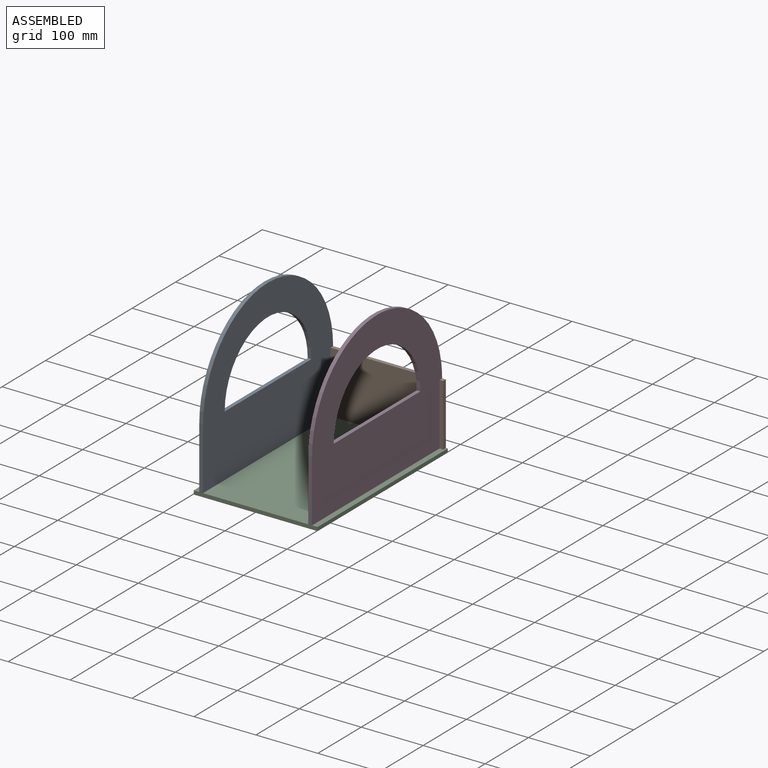
[diagram: assembled view]
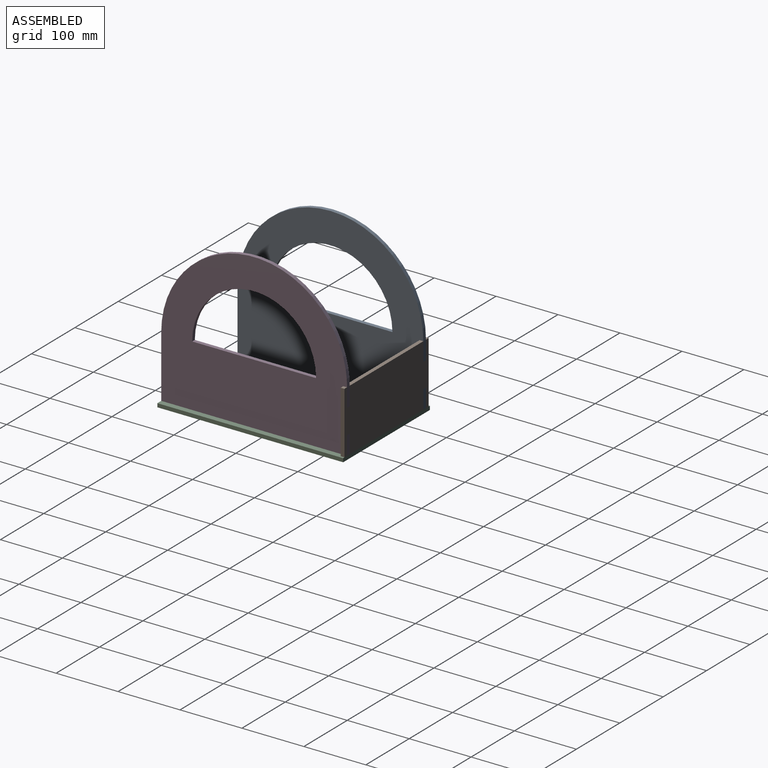
[diagram: assembled view, second angle]
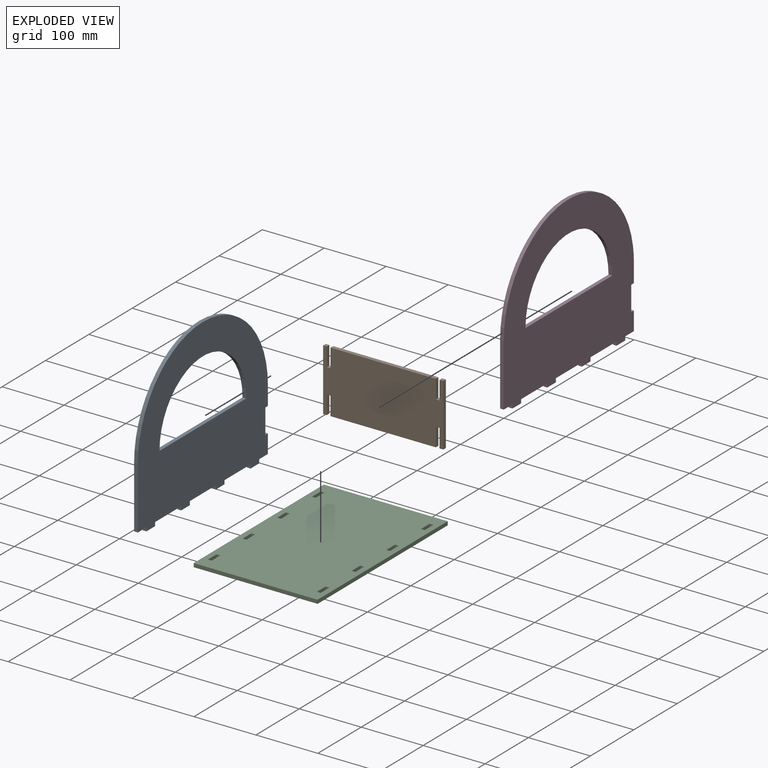
[diagram: exploded view]
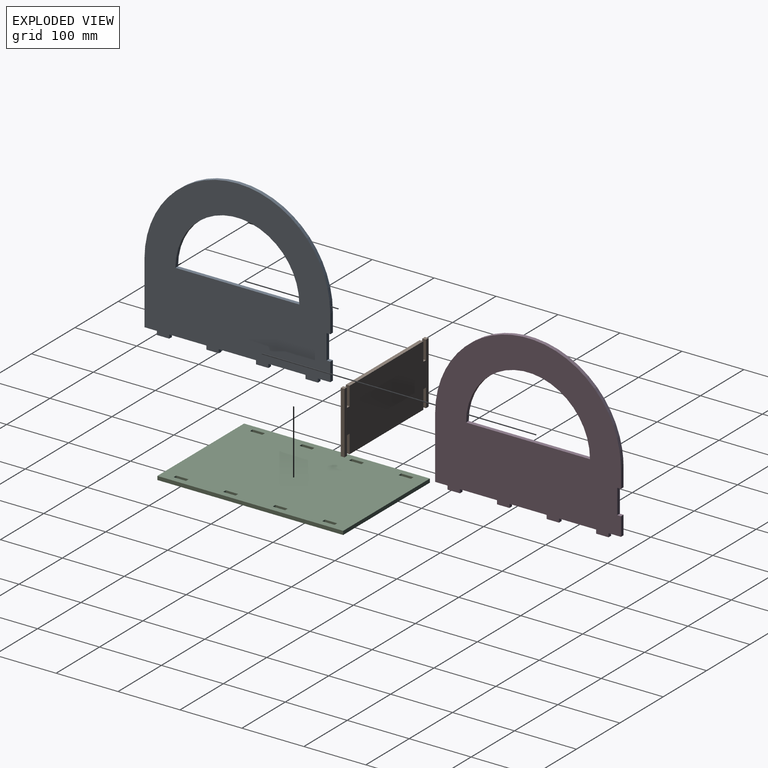
[diagram: exploded view, second angle]
ASSEMBLY  parts=4 mates=3
PART A: 28 faces, bbox 256x300x6 mm
  f0: plane 6x6mm, normal (1,0,0), area 36mm2, adj f1,f25,f26,f27
  f1: plane 30x6mm, normal (0,1,0), area 180mm2, adj f0,f2,f26,f27
  f2: cylinder r=150mm len=300mm, axis (0,0,-1), area 2827.4mm2, adj f1,f3,f26,f27
  f3: plane 100x6mm, normal (0,-1,0), area 600mm2, adj f2,f4,f26,f27
  f4: plane 20x6mm, normal (1,0,0), area 120mm2, adj f3,f5,f26,f27
  f5: plane 6x6mm, normal (0,-1,0), area 36mm2, adj f4,f6,f26,f27
  f6: plane 20x6mm, normal (1,0,0), area 120mm2, adj f5,f7,f26,f27
  f7: plane 6x6mm, normal (0,1,0), area 36mm2, adj f6,f8,f26,f27
  f8: plane 60x6mm, normal (1,0,0), area 360mm2, adj f7,f9,f26,f27
  f9: plane 6x6mm, normal (0,-1,0), area 36mm2, adj f8,f10,f26,f27
  f10: plane 20x6mm, normal (1,0,0), area 120mm2, adj f9,f11,f26,f27
  f11: plane 6x6mm, normal (0,1,0), area 36mm2, adj f10,f12,f26,f27
  f12: plane 60x6mm, normal (1,0,0), area 360mm2, adj f11,f13,f26,f27
  f13: plane 6x6mm, normal (0,-1,0), area 36mm2, adj f12,f14,f26,f27
  f14: plane 20x6mm, normal (1,0,0), area 120mm2, adj f13,f15,f26,f27
  f15: plane 6x6mm, normal (0,1,0), area 36mm2, adj f14,f16,f26,f27
  f16: plane 60x6mm, normal (1,0,0), area 360mm2, adj f15,f17,f26,f27
  f17: plane 6x6mm, normal (0,-1,0), area 36mm2, adj f16,f18,f26,f27
  f18: plane 20x6mm, normal (1,0,0), area 120mm2, adj f17,f19,f26,f27
  f19: plane 6x6mm, normal (0,1,0), area 36mm2, adj f18,f20,f26,f27
  f20: plane 20x6mm, normal (1,0,0), area 120mm2, adj f19,f21,f26,f27
  f21: plane 30x6mm, normal (0,1,0), area 180mm2, adj f20,f22,f26,f27
  f22: plane 6x6mm, normal (-1,0,0), area 36mm2, adj f21,f25,f26,f27
  f23: cylinder r=100mm len=200mm, axis (0,0,-1), area 1885mm2, adj f24,f26,f27
  f24: plane 200x6mm, normal (-1,0,0), area 1200mm2, adj f23,f26,f27
  f25: plane 40x6mm, normal (0,1,0), area 240mm2, adj f0,f22,f26,f27
  f26: plane 300x256mm, normal (0,0,1), area 49875mm2, adj f0,f1,f2,f3,f4,f5,f6,f7
  f27: plane 300x256mm, normal (0,0,-1), area 49875mm2, adj f0,f1,f2,f3,f4,f5,f6,f7
PART B: 22 faces, bbox 194x100x6 mm
  f0: plane 6x6mm, normal (0,-1,0), area 36mm2, adj f1,f19,f20,f21
  f1: plane 30x6mm, normal (-1,0,0), area 180mm2, adj f0,f2,f20,f21
  f2: plane 6x6mm, normal (0,-1,0), area 36mm2, adj f1,f3,f20,f21
  f3: plane 100x6mm, normal (1,0,0), area 600mm2, adj f2,f4,f20,f21
  f4: plane 6x6mm, normal (0,1,0), area 36mm2, adj f3,f5,f20,f21
  f5: plane 30x6mm, normal (-1,0,0), area 180mm2, adj f4,f6,f20,f21
  f6: plane 6x6mm, normal (0,1,0), area 36mm2, adj f5,f7,f20,f21
  f7: plane 30x6mm, normal (1,0,0), area 180mm2, adj f6,f8,f20,f21
  f8: plane 170x6mm, normal (0,1,0), area 1020mm2, adj f7,f9,f20,f21
  f9: plane 30x6mm, normal (-1,0,0), area 180mm2, adj f8,f10,f20,f21
  f10: plane 6x6mm, normal (0,1,0), area 36mm2, adj f9,f11,f20,f21
  f11: plane 30x6mm, normal (1,0,0), area 180mm2, adj f10,f12,f20,f21
  f12: plane 6x6mm, normal (0,1,0), area 36mm2, adj f11,f13,f20,f21
  f13: plane 100x6mm, normal (-1,0,0), area 600mm2, adj f12,f14,f20,f21
  f14: plane 6x6mm, normal (0,-1,0), area 36mm2, adj f13,f15,f20,f21
  f15: plane 30x6mm, normal (1,0,0), area 180mm2, adj f14,f16,f20,f21
  f16: plane 6x6mm, normal (0,-1,0), area 36mm2, adj f15,f17,f20,f21
  f17: plane 30x6mm, normal (-1,0,0), area 180mm2, adj f16,f18,f20,f21
  f18: plane 170x6mm, normal (0,-1,0), area 1020mm2, adj f17,f19,f20,f21
  f19: plane 30x6mm, normal (1,0,0), area 180mm2, adj f0,f18,f20,f21
  f20: plane 194x100mm, normal (0,0,1), area 18680mm2, adj f0,f1,f2,f3,f4,f5,f6,f7
  f21: plane 194x100mm, normal (0,0,-1), area 18680mm2, adj f0,f1,f2,f3,f4,f5,f6,f7
PART C: 38 faces, bbox 200x300x6 mm
  f0: plane 200x6mm, normal (0,1,0), area 1200mm2, adj f1,f35,f36,f37
  f1: plane 300x6mm, normal (-1,0,0), area 1800mm2, adj f0,f2,f36,f37
  f2: plane 200x6mm, normal (0,-1,0), area 1200mm2, adj f1,f35,f36,f37
  f3: plane 20x6mm, normal (1,0,0), area 120mm2, adj f4,f27,f36,f37
  f4: plane 6x6mm, normal (0,-1,0), area 36mm2, adj f3,f5,f36,f37
  f5: plane 20x6mm, normal (-1,0,0), area 120mm2, adj f4,f27,f36,f37
  f6: plane 20x6mm, normal (1,0,0), area 120mm2, adj f7,f28,f36,f37
  f7: plane 6x6mm, normal (0,-1,0), area 36mm2, adj f6,f8,f36,f37
  f8: plane 20x6mm, normal (-1,0,0), area 120mm2, adj f7,f28,f36,f37
  f9: plane 20x6mm, normal (1,0,0), area 120mm2, adj f10,f29,f36,f37
  f10: plane 6x6mm, normal (0,-1,0), area 36mm2, adj f9,f11,f36,f37
  f11: plane 20x6mm, normal (-1,0,0), area 120mm2, adj f10,f29,f36,f37
  f12: plane 20x6mm, normal (1,0,0), area 120mm2, adj f13,f30,f36,f37
  f13: plane 6x6mm, normal (0,-1,0), area 36mm2, adj f12,f14,f36,f37
  f14: plane 20x6mm, normal (-1,0,0), area 120mm2, adj f13,f30,f36,f37
  f15: plane 20x6mm, normal (1,0,0), area 120mm2, adj f16,f31,f36,f37
  f16: plane 6x6mm, normal (0,-1,0), area 36mm2, adj f15,f17,f36,f37
  f17: plane 20x6mm, normal (-1,0,0), area 120mm2, adj f16,f31,f36,f37
  f18: plane 20x6mm, normal (1,0,0), area 120mm2, adj f19,f32,f36,f37
  f19: plane 6x6mm, normal (0,-1,0), area 36mm2, adj f18,f20,f36,f37
  f20: plane 20x6mm, normal (-1,0,0), area 120mm2, adj f19,f32,f36,f37
  f21: plane 20x6mm, normal (1,0,0), area 120mm2, adj f22,f33,f36,f37
  f22: plane 6x6mm, normal (0,-1,0), area 36mm2, adj f21,f23,f36,f37
  f23: plane 20x6mm, normal (-1,0,0), area 120mm2, adj f22,f33,f36,f37
  f24: plane 20x6mm, normal (1,0,0), area 120mm2, adj f25,f34,f36,f37
  f25: plane 6x6mm, normal (0,-1,0), area 36mm2, adj f24,f26,f36,f37
  f26: plane 20x6mm, normal (-1,0,0), area 120mm2, adj f25,f34,f36,f37
  f27: plane 6x6mm, normal (0,1,0), area 36mm2, adj f3,f5,f36,f37
  f28: plane 6x6mm, normal (0,1,0), area 36mm2, adj f6,f8,f36,f37
  f29: plane 6x6mm, normal (0,1,0), area 36mm2, adj f9,f11,f36,f37
  f30: plane 6x6mm, normal (0,1,0), area 36mm2, adj f12,f14,f36,f37
  f31: plane 6x6mm, normal (0,1,0), area 36mm2, adj f15,f17,f36,f37
  f32: plane 6x6mm, normal (0,1,0), area 36mm2, adj f18,f20,f36,f37
  f33: plane 6x6mm, normal (0,1,0), area 36mm2, adj f21,f23,f36,f37
  f34: plane 6x6mm, normal (0,1,0), area 36mm2, adj f24,f26,f36,f37
  f35: plane 300x6mm, normal (1,0,0), area 1800mm2, adj f0,f2,f36,f37
  f36: plane 300x200mm, normal (0,0,1), area 59040mm2, adj f0,f1,f2,f3,f4,f5,f6,f7
  f37: plane 300x200mm, normal (0,0,-1), area 59040mm2, adj f0,f1,f2,f3,f4,f5,f6,f7
PART D: 28 faces, bbox 301x300x6 mm
  f0: plane 30x6mm, normal (0,1,0), area 180mm2, adj f1,f25,f26,f27
  f1: plane 6x6mm, normal (-1,0,0), area 36mm2, adj f0,f2,f26,f27
  f2: plane 40x6mm, normal (0,1,0), area 240mm2, adj f1,f3,f26,f27
  f3: plane 6x6mm, normal (1,0,0), area 36mm2, adj f2,f4,f26,f27
  f4: plane 30x6mm, normal (0,1,0), area 180mm2, adj f3,f5,f26,f27
  f5: plane 20x6mm, normal (-1,0,0), area 120mm2, adj f4,f6,f26,f27
  f6: plane 6x6mm, normal (0,1,0), area 36mm2, adj f5,f7,f26,f27
  f7: plane 20x6mm, normal (-1,0,0), area 120mm2, adj f6,f8,f26,f27
  f8: plane 6x6mm, normal (0,-1,0), area 36mm2, adj f7,f9,f26,f27
  f9: plane 60x6mm, normal (-1,0,0), area 360mm2, adj f8,f10,f26,f27
  f10: plane 6x6mm, normal (0,1,0), area 36mm2, adj f9,f11,f26,f27
  f11: plane 20x6mm, normal (-1,0,0), area 120mm2, adj f10,f12,f26,f27
  f12: plane 6x6mm, normal (0,-1,0), area 36mm2, adj f11,f13,f26,f27
  f13: plane 60x6mm, normal (-1,0,0), area 360mm2, adj f12,f14,f26,f27
  f14: plane 6x6mm, normal (0,1,0), area 36mm2, adj f13,f15,f26,f27
  f15: plane 20x6mm, normal (-1,0,0), area 120mm2, adj f14,f16,f26,f27
  f16: plane 6x6mm, normal (0,-1,0), area 36mm2, adj f15,f17,f26,f27
  f17: plane 60x6mm, normal (-1,0,0), area 360mm2, adj f16,f18,f26,f27
  f18: plane 6x6mm, normal (0,1,0), area 36mm2, adj f17,f19,f26,f27
  f19: plane 20x6mm, normal (-1,0,0), area 120mm2, adj f18,f20,f26,f27
  f20: plane 6x6mm, normal (0,-1,0), area 36mm2, adj f19,f21,f26,f27
  f21: plane 20x6mm, normal (-1,0,0), area 120mm2, adj f20,f22,f26,f27
  f22: plane 100x6mm, normal (0,-1,0), area 600mm2, adj f21,f25,f26,f27
  f23: cylinder r=100mm len=200mm, axis (0,0,-1), area 1885mm2, adj f24,f26,f27
  f24: plane 200x6mm, normal (1,0,0), area 1200mm2, adj f23,f26,f27
  f25: extruded ~300x150mm, area 2827.4mm2, adj f0,f22,f26,f27
  f26: plane 301x300mm, normal (0,0,1), area 49868.2mm2, adj f0,f1,f2,f3,f4,f5,f6,f7
  f27: plane 301x300mm, normal (0,0,-1), area 49868.2mm2, adj f0,f1,f2,f3,f4,f5,f6,f7
PLACE A rot(axis=(0,1,0),90deg) t=(-251.28,138.14,-117.5)mm
PLACE B rot(axis=(1,0,0),90deg) t=(-260.66,-28.85,43.93)mm
PLACE C t=(-259.3,138.14,-102.51)mm
PLACE D rot(axis=(0,-1,0),90deg) t=(-69.28,138.14,-315.53)mm
MATE fastened B.f20 <-> A.f25  axis (0,-1,0) through (-248.28,-34.85,-66.51)mm
MATE fastened D.f4 <-> B.f21  axis (0,1,0) through (-72.28,-28.85,-66.51)mm
MATE fastened A.f18 <-> C.f37  axis (0,0,-1) through (-245.28,-58.85,-102.51)mm
